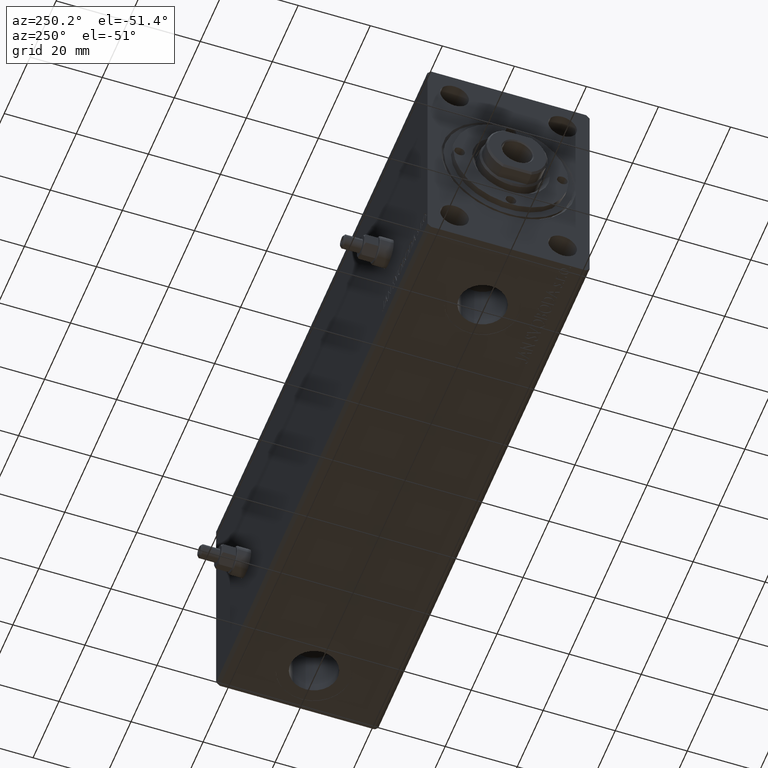
[diagram: clean part render]
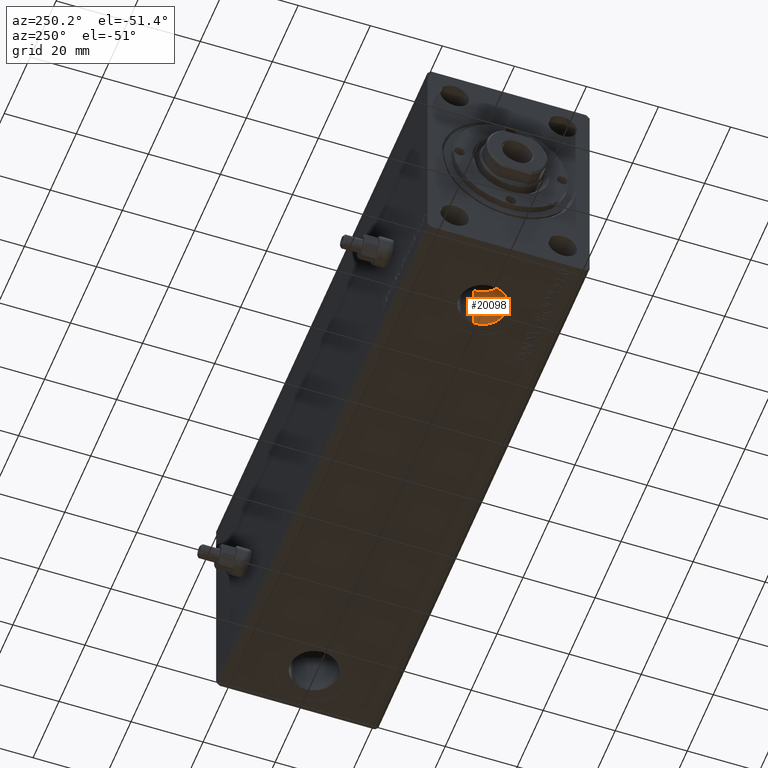
[diagram: same view with one face highlighted and labeled with its STEP entity id]
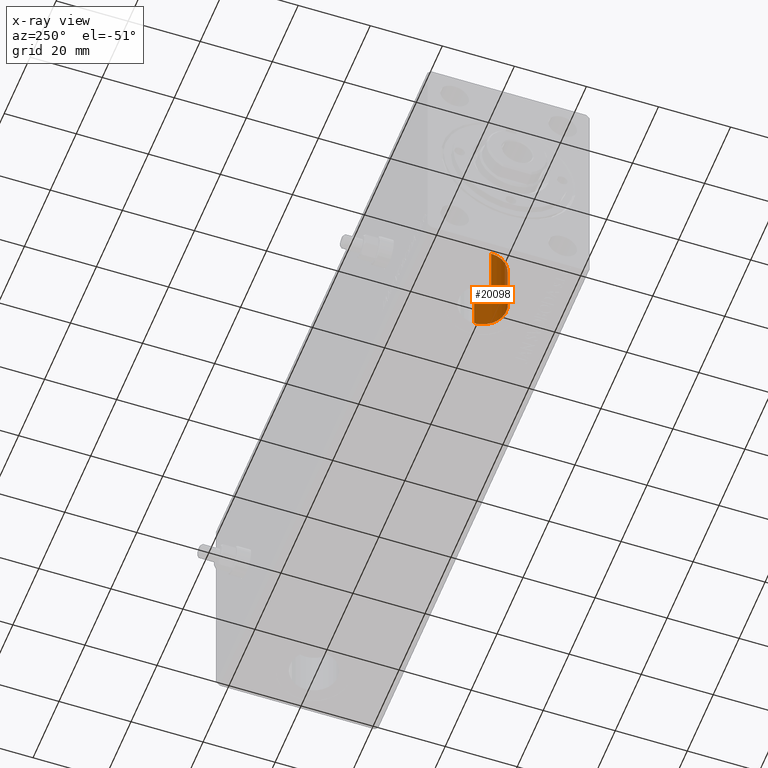
[diagram: x-ray of the same camera — body ghosted, the highlighted face saturated]
A machine part, auxiliary view. The second image highlights one B-rep face of the part: STEP entity #20098.
The next image is the same camera in x-ray: the body ghosted, the highlighted face saturated — about 0% of this face is hidden behind the body in this view.
In plain terms, the highlighted cylindrical surface (edge-blend (fillet) strip) has radius 6.58 mm, axis along (-0, -0, -1).
Its self-contained STEP definition (entity closure, byte-faithful):
#354 = VERTEX_POINT ( 'NONE', #3812 ) ;
#667 = DIRECTION ( 'NONE',  ( -1.000000000000000000, 0.000000000000000000, 0.000000000000000000 ) ) ;
#741 = AXIS2_PLACEMENT_3D ( 'NONE', #11393, #25339, #11631 ) ;
#3777 = DIRECTION ( 'NONE',  ( -0.000000000000000000, -0.000000000000000000, -1.000000000000000000 ) ) ;
#3812 = CARTESIAN_POINT ( 'NONE',  ( 26.57999999999999829, 3.384576556735897587E-15, -18.79999999999999716 ) ) ;
#4071 = EDGE_CURVE ( 'NONE', #31786, #18026, #21609, .T. ) ;
#4374 = EDGE_LOOP ( 'NONE', ( #7352, #10838, #28730, #6269 ) ) ;
#5321 = EDGE_CURVE ( 'NONE', #6993, #18026, #26735, .T. ) ;
#6269 = ORIENTED_EDGE ( 'NONE', *, *, #4071, .F. ) ;
#6993 = VERTEX_POINT ( 'NONE', #41096 ) ;
#7352 = ORIENTED_EDGE ( 'NONE', *, *, #20571, .F. ) ;
#7528 = EDGE_CURVE ( 'NONE', #354, #6993, #17283, .T. ) ;
#8062 = AXIS2_PLACEMENT_3D ( 'NONE', #38916, #14260, #22026 ) ;
#10838 = ORIENTED_EDGE ( 'NONE', *, *, #7528, .T. ) ;
#11393 = CARTESIAN_POINT ( 'NONE',  ( 19.99999999999999645, 2.578758962896938545E-15, -18.79999999999999716 ) ) ;
#11631 = DIRECTION ( 'NONE',  ( -1.000000000000000000, 0.000000000000000000, 0.000000000000000000 ) ) ;
#12151 = AXIS2_PLACEMENT_3D ( 'NONE', #31511, #14166, #667 ) ;
#14166 = DIRECTION ( 'NONE',  ( 0.000000000000000000, 0.000000000000000000, -1.000000000000000000 ) ) ;
#14260 = DIRECTION ( 'NONE',  ( 0.000000000000000000, 0.000000000000000000, -1.000000000000000000 ) ) ;
#14830 = FACE_OUTER_BOUND ( 'NONE', #4374, .T. ) ;
#17283 = LINE ( 'NONE', #24370, #25338 ) ;
#18026 = VERTEX_POINT ( 'NONE', #43953 ) ;
#18866 = DIRECTION ( 'NONE',  ( -0.000000000000000000, -0.000000000000000000, -1.000000000000000000 ) ) ;
#20098 = ADVANCED_FACE ( 'NONE', ( #14830 ), #42676, .F. ) ;
#20571 = EDGE_CURVE ( 'NONE', #354, #31786, #21166, .T. ) ;
#21166 = CIRCLE ( 'NONE', #8062, 6.580000000000002736 ) ;
#21609 = LINE ( 'NONE', #35529, #25986 ) ;
#22026 = DIRECTION ( 'NONE',  ( -1.000000000000000000, 0.000000000000000000, 0.000000000000000000 ) ) ;
#24370 = CARTESIAN_POINT ( 'NONE',  ( 26.57999999999999829, 3.384576556735897587E-15, -18.79999999999999716 ) ) ;
#25338 = VECTOR ( 'NONE', #3777, 1000.000000000000000 ) ;
#25339 = DIRECTION ( 'NONE',  ( -0.000000000000000000, -0.000000000000000000, -1.000000000000000000 ) ) ;
#25986 = VECTOR ( 'NONE', #18866, 1000.000000000000000 ) ;
#26735 = CIRCLE ( 'NONE', #12151, 6.580000000000002736 ) ;
#28730 = ORIENTED_EDGE ( 'NONE', *, *, #5321, .T. ) ;
#31511 = CARTESIAN_POINT ( 'NONE',  ( 19.99999999999999645, 2.578758962896938545E-15, -32.39999999999999858 ) ) ;
#31549 = CARTESIAN_POINT ( 'NONE',  ( 13.41999999999999460, 2.578758962896938545E-15, -18.79999999999999716 ) ) ;
#31786 = VERTEX_POINT ( 'NONE', #31549 ) ;
#35529 = CARTESIAN_POINT ( 'NONE',  ( 13.41999999999999460, 2.578758962896938545E-15, -18.79999999999999716 ) ) ;
#38916 = CARTESIAN_POINT ( 'NONE',  ( 19.99999999999999645, 2.578758962896938545E-15, -18.79999999999999716 ) ) ;
#41096 = CARTESIAN_POINT ( 'NONE',  ( 26.57999999999999829, 3.384576556735897587E-15, -32.39999999999999858 ) ) ;
#42676 = CYLINDRICAL_SURFACE ( 'NONE', #741, 6.580000000000002736 ) ;
#43953 = CARTESIAN_POINT ( 'NONE',  ( 13.41999999999999460, 2.578758962896938545E-15, -32.39999999999999858 ) ) ;